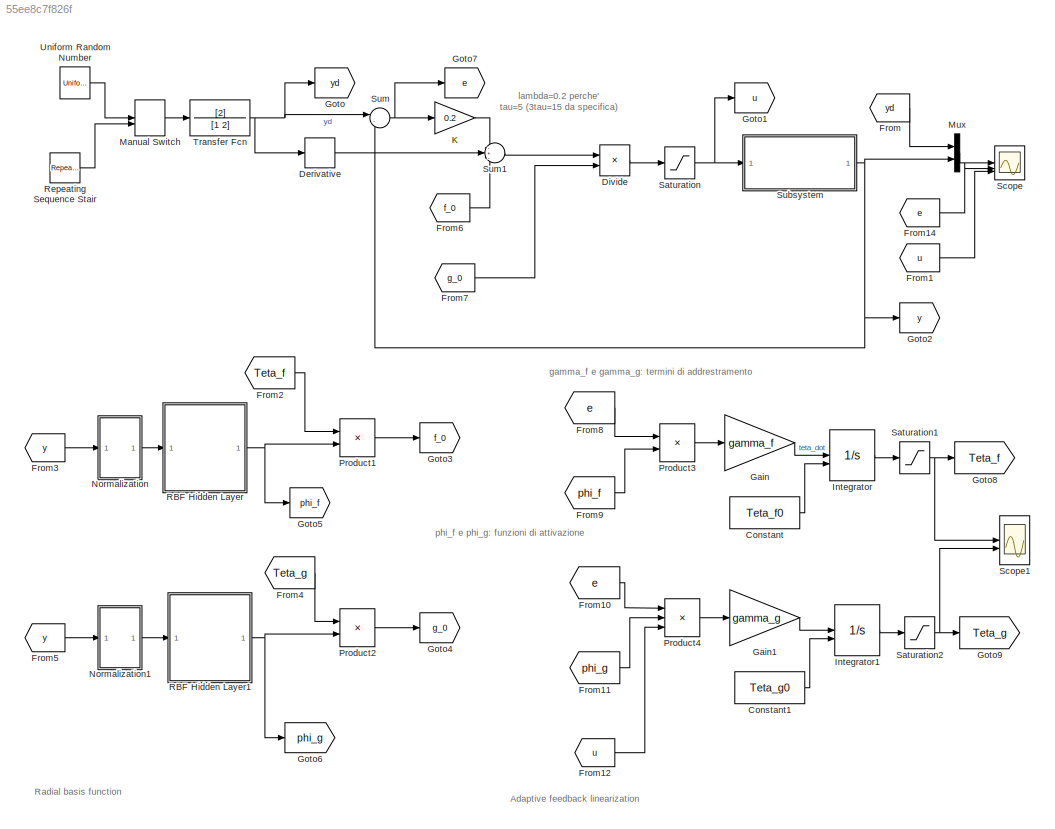
MODEL mdl_55ee8c7f826f
KIND model
CONFIG AbsTol = auto
CONFIG EnableMultiTasking = on
CONFIG FixedStep = auto
CONFIG MaxStep = auto
CONFIG MinStep = auto
CONFIG RelTol = 1e-3
CONFIG SampleTimeConstraint = Unconstrained
CONFIG SolverName = ode45
CONFIG StartTime = 0.0
CONFIG StopTime = 100
BLOCK [Constant] Constant
  Value = Teta_f0
BLOCK [Constant] Constant1
  Value = Teta_g0
BLOCK [Derivative] Derivative
BLOCK [Product] Divide
  Inputs = */
BLOCK [From] From
  CloseFcn = tagdialog Close
  GotoTag = yd
BLOCK [From] From1
  CloseFcn = tagdialog Close
  GotoTag = u
BLOCK [From] From10
  CloseFcn = tagdialog Close
  GotoTag = e
BLOCK [From] From11
  CloseFcn = tagdialog Close
  GotoTag = phi_g
BLOCK [From] From12
  CloseFcn = tagdialog Close
  GotoTag = u
BLOCK [From] From14
  CloseFcn = tagdialog Close
  GotoTag = e
BLOCK [From] From2
  CloseFcn = tagdialog Close
  GotoTag = Teta_f
BLOCK [From] From3
  CloseFcn = tagdialog Close
  GotoTag = y
BLOCK [From] From4
  CloseFcn = tagdialog Close
  GotoTag = Teta_g
BLOCK [From] From5
  CloseFcn = tagdialog Close
  GotoTag = y
BLOCK [From] From6
  CloseFcn = tagdialog Close
  GotoTag = f_0
BLOCK [From] From7
  CloseFcn = tagdialog Close
  GotoTag = g_0
BLOCK [From] From8
  CloseFcn = tagdialog Close
  GotoTag = e
BLOCK [From] From9
  CloseFcn = tagdialog Close
  GotoTag = phi_f
BLOCK [Gain] Gain
  Gain = gamma_f
BLOCK [Gain] Gain1
  Gain = gamma_g
BLOCK [Goto] Goto
  GotoTag = yd
BLOCK [Goto] Goto1
  GotoTag = u
BLOCK [Goto] Goto2
  GotoTag = y
BLOCK [Goto] Goto3
  GotoTag = f_0
BLOCK [Goto] Goto4
  GotoTag = g_0
BLOCK [Goto] Goto5
  GotoTag = phi_f
BLOCK [Goto] Goto6
  GotoTag = phi_g
BLOCK [Goto] Goto7
  GotoTag = e
BLOCK [Goto] Goto8
  GotoTag = Teta_f
BLOCK [Goto] Goto9
  GotoTag = Teta_g
BLOCK [Integrator] Integrator
  InitialConditionSource = external
BLOCK [Integrator] Integrator1
  InitialConditionSource = external
BLOCK [Gain] K
  Gain = 0.2
BLOCK [ManualSwitch] Manual Switch
  CurrentSetting = 0
BLOCK [Mux] Mux
  DisplayOption = bar
  Inputs = 2
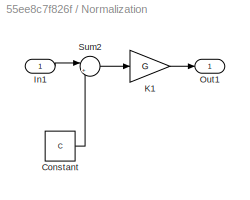
BLOCK [SubSystem] Normalization
BLOCK [Constant] Normalization/Constant
  Value = C
BLOCK [Inport] Normalization/In1
BLOCK [Gain] Normalization/K1
  Gain = G
BLOCK [Outport] Normalization/Out1
BLOCK [Sum] Normalization/Sum2
  Inputs = |+-
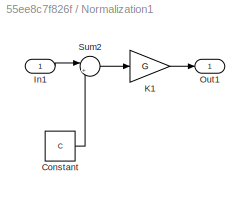
BLOCK [SubSystem] Normalization1
BLOCK [Constant] Normalization1/Constant
  Value = C
BLOCK [Inport] Normalization1/In1
BLOCK [Gain] Normalization1/K1
  Gain = G
BLOCK [Outport] Normalization1/Out1
BLOCK [Sum] Normalization1/Sum2
  Inputs = |+-
BLOCK [Product] Product1
  Multiplication = Matrix(*)
  RndMeth = Zero
BLOCK [Product] Product2
  Multiplication = Matrix(*)
  RndMeth = Zero
BLOCK [Product] Product3
  RndMeth = Zero
BLOCK [Product] Product4
  Inputs = 3
  RndMeth = Zero
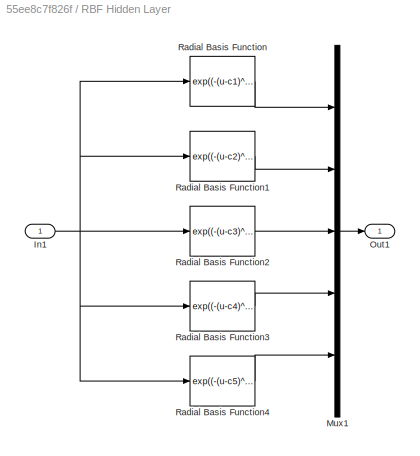
BLOCK [SubSystem] RBF Hidden Layer
BLOCK [Inport] RBF Hidden Layer/In1
BLOCK [Mux] RBF Hidden Layer/Mux1
  DisplayOption = bar
  Inputs = 5
BLOCK [Outport] RBF Hidden Layer/Out1
BLOCK [Fcn] RBF Hidden Layer/Radial Basis Function
  Expr = exp((-(u-c1)^2)/(s1^2))
BLOCK [Fcn] RBF Hidden Layer/Radial Basis Function1
  Expr = exp((-(u-c2)^2)/(s2^2))
BLOCK [Fcn] RBF Hidden Layer/Radial Basis Function2
  Expr = exp((-(u-c3)^2)/(s3^2))
BLOCK [Fcn] RBF Hidden Layer/Radial Basis Function3
  Expr = exp((-(u-c4)^2)/(s4^2))
BLOCK [Fcn] RBF Hidden Layer/Radial Basis Function4
  Expr = exp((-(u-c5)^2)/(s5^2))
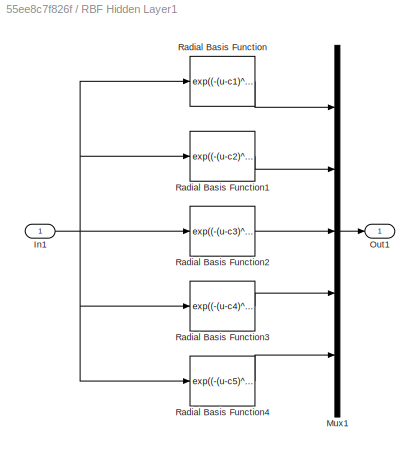
BLOCK [SubSystem] RBF Hidden Layer1
BLOCK [Inport] RBF Hidden Layer1/In1
BLOCK [Mux] RBF Hidden Layer1/Mux1
  DisplayOption = bar
  Inputs = 5
BLOCK [Outport] RBF Hidden Layer1/Out1
BLOCK [Fcn] RBF Hidden Layer1/Radial Basis Function
  Expr = exp((-(u-c1)^2)/(s1^2))
BLOCK [Fcn] RBF Hidden Layer1/Radial Basis Function1
  Expr = exp((-(u-c2)^2)/(s2^2))
BLOCK [Fcn] RBF Hidden Layer1/Radial Basis Function2
  Expr = exp((-(u-c3)^2)/(s3^2))
BLOCK [Fcn] RBF Hidden Layer1/Radial Basis Function3
  Expr = exp((-(u-c4)^2)/(s4^2))
BLOCK [Fcn] RBF Hidden Layer1/Radial Basis Function4
  Expr = exp((-(u-c5)^2)/(s5^2))
BLOCK [Reference] Repeating Sequence Stair  REF=simulink/Sources/Repeating
Sequence
Stair
  SourceBlock = simulink/Sources/Repeating\nSequence\nStair
  SourceType = Repeating Sequence Stair
BLOCK [Saturate] Saturation
  LowerLimit = -10
  UpperLimit = 10
BLOCK [Saturate] Saturation1
  LowerLimit = -30
  UpperLimit = 30
BLOCK [Saturate] Saturation2
  LowerLimit = 0.1
  UpperLimit = 15
BLOCK [Scope] Scope
  ActiveDisplayYMaximum = 68.068875510875017
  ActiveDisplayYMinimum = -7.5632083900972216
  DataLoggingDecimateData = on
  DataLoggingDecimation = 1
  DataLoggingSaveFormat = Structure With Time
  Floating = off
  GraphicalSettings = {"AxesScalingProperties":{"AlignXAxis":"Center","AlignYAxis":"Center","AutoScaleXAxisLimits":false,"AxesScaling":"Manual","AxesScalingNumUpdates":10,"ExpandOnly":true,"ScaleAxesLimitsAtStop":false,"XAxisDataRange":100,"YAxisDataRange":80},"DisplayProperties":{"ColorOrder":["auto","auto","auto","auto","auto","auto","auto","auto","auto","auto","auto","auto","auto","auto","auto","auto","auto","auto",...<+2905ch>
  LayoutDimensionsString = [3 1]
  MultipleDisplayCache = [{"MaxYLimMag":68.068875510875017,"MaxYLimReal":68.068875510875017,"MinYLimMag":0,"MinYLimReal":-7.5632083900972216,"PlotAsMagnitudePhase":false,"ShowGrid":true,"ShowLegend":false,"Title":"%<SignalLabel>","YLabel":""},{"MaxYLimMag":7.6063084252352606,"MaxYLimReal":6.0852700693436415,"MinYLimMag":0,"MinYLimReal":-7.6063084252352606,"PlotAsMagnitudePhase":false,"ShowGrid":true,"ShowLegend":false,"Ti...<+210ch>
  NumInputPorts = 3
  ScopeFrameLocation = window
  WasSavedAsWebScope = on
  WindowPosition = [1.000000,49.000000,1536.000000,793.000000,]
BLOCK [Scope] Scope1
  ActiveDisplayYMaximum = 42.5905
  ActiveDisplayYMinimum = -71.38391
  DataLoggingDecimateData = on
  DataLoggingDecimation = 1
  DataLoggingSaveFormat = Structure With Time
  DataLoggingVariableName = ScopeData1
  Floating = off
  GraphicalSettings = {"GraphicalSettings":{"LegacySettings":true,"Style":{"AxesScalingProperties":{"ScaleAxesLimitsAtStop":false},"Style":{"AxesColor":"[0 0 0]","ChannelNames":["",""],"ColorOrder":"[1 1 0.0666666666666667;0.0745098039215686 0.623529411764706 1;1 0.411764705882353 0.16078431372549;0.392156862745098 0.831372549019608 0.0745098039215686;0.717647058823529 0.274509803921569 1;0.0588235294117647 1 1;1 0.074...<+479ch>
  LayoutDimensionsString = [2 1]
  MultipleDisplayCache = [{"MaxYLimMag":71.38391,"MaxYLimReal":42.5905,"MinYLimMag":0,"MinYLimReal":-71.38391,"PlotAsMagnitudePhase":false,"ShowGrid":true,"ShowLegend":false,"Title":"%<SignalLabel>","YLabel":""},{"MaxYLimMag":10,"MaxYLimReal":16.8625,"MinYLimMag":0,"MinYLimReal":-1.7625,"PlotAsMagnitudePhase":false,"ShowGrid":true,"ShowLegend":false,"Title":"%<SignalLabel>","YLabel":""}]
  NumInputPorts = 2
  TimeSpan = 100
  WasSavedAsWebScope = on
  WindowPosition = [1 -175 1920 963]
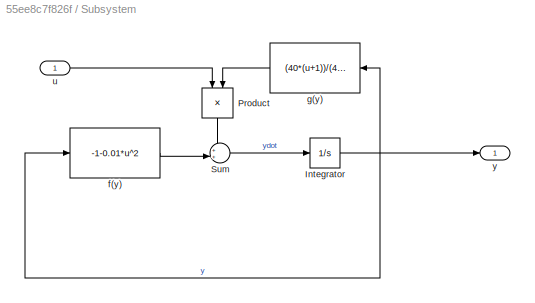
BLOCK [SubSystem] Subsystem
BLOCK [Integrator] Subsystem/Integrator
BLOCK [Product] Subsystem/Product
  NameLocation = left
  RndMeth = Zero
BLOCK [Sum] Subsystem/Sum
  Inputs = ++|
BLOCK [Fcn] Subsystem/f(y)
  Expr = -1-0.01*u^2
BLOCK [Fcn] Subsystem/g(y)
  Expr = (40*(u+1))/(40+u)
  NameLocation = top
BLOCK [Inport] Subsystem/u
BLOCK [Outport] Subsystem/y
BLOCK [Sum] Sum
  Inputs = |-+
BLOCK [Sum] Sum1
  Inputs = -+-
BLOCK [TransferFcn] Transfer Fcn
  Denominator = [1 2]
  Numerator = [2]
BLOCK [UniformRandomNumber] Uniform Random Number
  Maximum = 60
  Minimum = 20
  SampleTime = 3
ANNOTATION (root): Adaptive feedback linearization
ANNOTATION (root): Radial basis function
ANNOTATION (root): gamma_f e gamma_g: termini di addrestramento
ANNOTATION (root): lambda=0.2 perche' tau=5 (3tau=15 da specifica)
ANNOTATION (root): phi_f e phi_g: funzioni di attivazione
LINE Constant1:1 -> Integrator1:2
LINE Constant:1 -> Integrator:2
LINE Derivative:1 -> Sum1:2
LINE Divide:1 -> Saturation:1
LINE From10:1 -> Product4:1
LINE From11:1 -> Product4:2
LINE From12:1 -> Product4:3
LINE From14:1 -> Scope:2
LINE From1:1 -> Scope:3
LINE From2:1 -> Product1:1
LINE From3:1 -> Normalization:1
LINE From4:1 -> Product2:1
LINE From5:1 -> Normalization1:1
LINE From6:1 -> Sum1:3
LINE From7:1 -> Divide:2
LINE From8:1 -> Product3:1
LINE From9:1 -> Product3:2
LINE From:1 -> Mux:1
LINE Gain1:1 -> Integrator1:1
LINE Gain:1 -> Integrator:1
LINE Integrator1:1 -> Saturation2:1
LINE Integrator:1 -> Saturation1:1
LINE K:1 -> Sum1:1
LINE Manual Switch:1 -> Transfer Fcn:1
LINE Mux:1 -> Scope:1
LINE Normalization/Constant:1 -> Normalization/Sum2:2
LINE Normalization/In1:1 -> Normalization/Sum2:1
LINE Normalization/K1:1 -> Normalization/Out1:1
LINE Normalization/Sum2:1 -> Normalization/K1:1
LINE Normalization1/Constant:1 -> Normalization1/Sum2:2
LINE Normalization1/In1:1 -> Normalization1/Sum2:1
LINE Normalization1/K1:1 -> Normalization1/Out1:1
LINE Normalization1/Sum2:1 -> Normalization1/K1:1
LINE Normalization1:1 -> RBF Hidden Layer1:1
LINE Normalization:1 -> RBF Hidden Layer:1
LINE Product1:1 -> Goto3:1
LINE Product2:1 -> Goto4:1
LINE Product3:1 -> Gain:1
LINE Product4:1 -> Gain1:1
NET RBF Hidden Layer/In1:1 -> RBF Hidden Layer/Radial Basis Function1:1, RBF Hidden Layer/Radial Basis Function2:1, RBF Hidden Layer/Radial Basis Function3:1, RBF Hidden Layer/Radial Basis Function4:1, RBF Hidden Layer/Radial Basis Function:1
LINE RBF Hidden Layer/Mux1:1 -> RBF Hidden Layer/Out1:1
LINE RBF Hidden Layer/Radial Basis Function1:1 -> RBF Hidden Layer/Mux1:2
LINE RBF Hidden Layer/Radial Basis Function2:1 -> RBF Hidden Layer/Mux1:3
LINE RBF Hidden Layer/Radial Basis Function3:1 -> RBF Hidden Layer/Mux1:4
LINE RBF Hidden Layer/Radial Basis Function4:1 -> RBF Hidden Layer/Mux1:5
LINE RBF Hidden Layer/Radial Basis Function:1 -> RBF Hidden Layer/Mux1:1
NET RBF Hidden Layer1/In1:1 -> RBF Hidden Layer1/Radial Basis Function1:1, RBF Hidden Layer1/Radial Basis Function2:1, RBF Hidden Layer1/Radial Basis Function3:1, RBF Hidden Layer1/Radial Basis Function4:1, RBF Hidden Layer1/Radial Basis Function:1
LINE RBF Hidden Layer1/Mux1:1 -> RBF Hidden Layer1/Out1:1
LINE RBF Hidden Layer1/Radial Basis Function1:1 -> RBF Hidden Layer1/Mux1:2
LINE RBF Hidden Layer1/Radial Basis Function2:1 -> RBF Hidden Layer1/Mux1:3
LINE RBF Hidden Layer1/Radial Basis Function3:1 -> RBF Hidden Layer1/Mux1:4
LINE RBF Hidden Layer1/Radial Basis Function4:1 -> RBF Hidden Layer1/Mux1:5
LINE RBF Hidden Layer1/Radial Basis Function:1 -> RBF Hidden Layer1/Mux1:1
NET RBF Hidden Layer1:1 -> Goto6:1, Product2:2
NET RBF Hidden Layer:1 -> Goto5:1, Product1:2
LINE Repeating Sequence Stair:1 -> Manual Switch:2
NET Saturation1:1 -> Goto8:1, Scope1:1
NET Saturation2:1 -> Goto9:1, Scope1:2
NET Saturation:1 -> Goto1:1, Subsystem:1
NET Subsystem/Integrator:1 -> Subsystem/f(y):1, Subsystem/g(y):1, Subsystem/y:1
LINE Subsystem/Product:1 -> Subsystem/Sum:1
LINE Subsystem/Sum:1 -> Subsystem/Integrator:1
LINE Subsystem/f(y):1 -> Subsystem/Sum:2
LINE Subsystem/g(y):1 -> Subsystem/Product:2
LINE Subsystem/u:1 -> Subsystem/Product:1
NET Subsystem:1 -> Goto2:1, Mux:2, Sum:2
LINE Sum1:1 -> Divide:1
NET Sum:1 -> Goto7:1, K:1
NET Transfer Fcn:1 -> Derivative:1, Goto:1, Sum:1
LINE Uniform Random Number:1 -> Manual Switch:1
note: NET lines group one-source signal fan-out (src -> all destinations, sorted); 1:1 wires keep LINE
